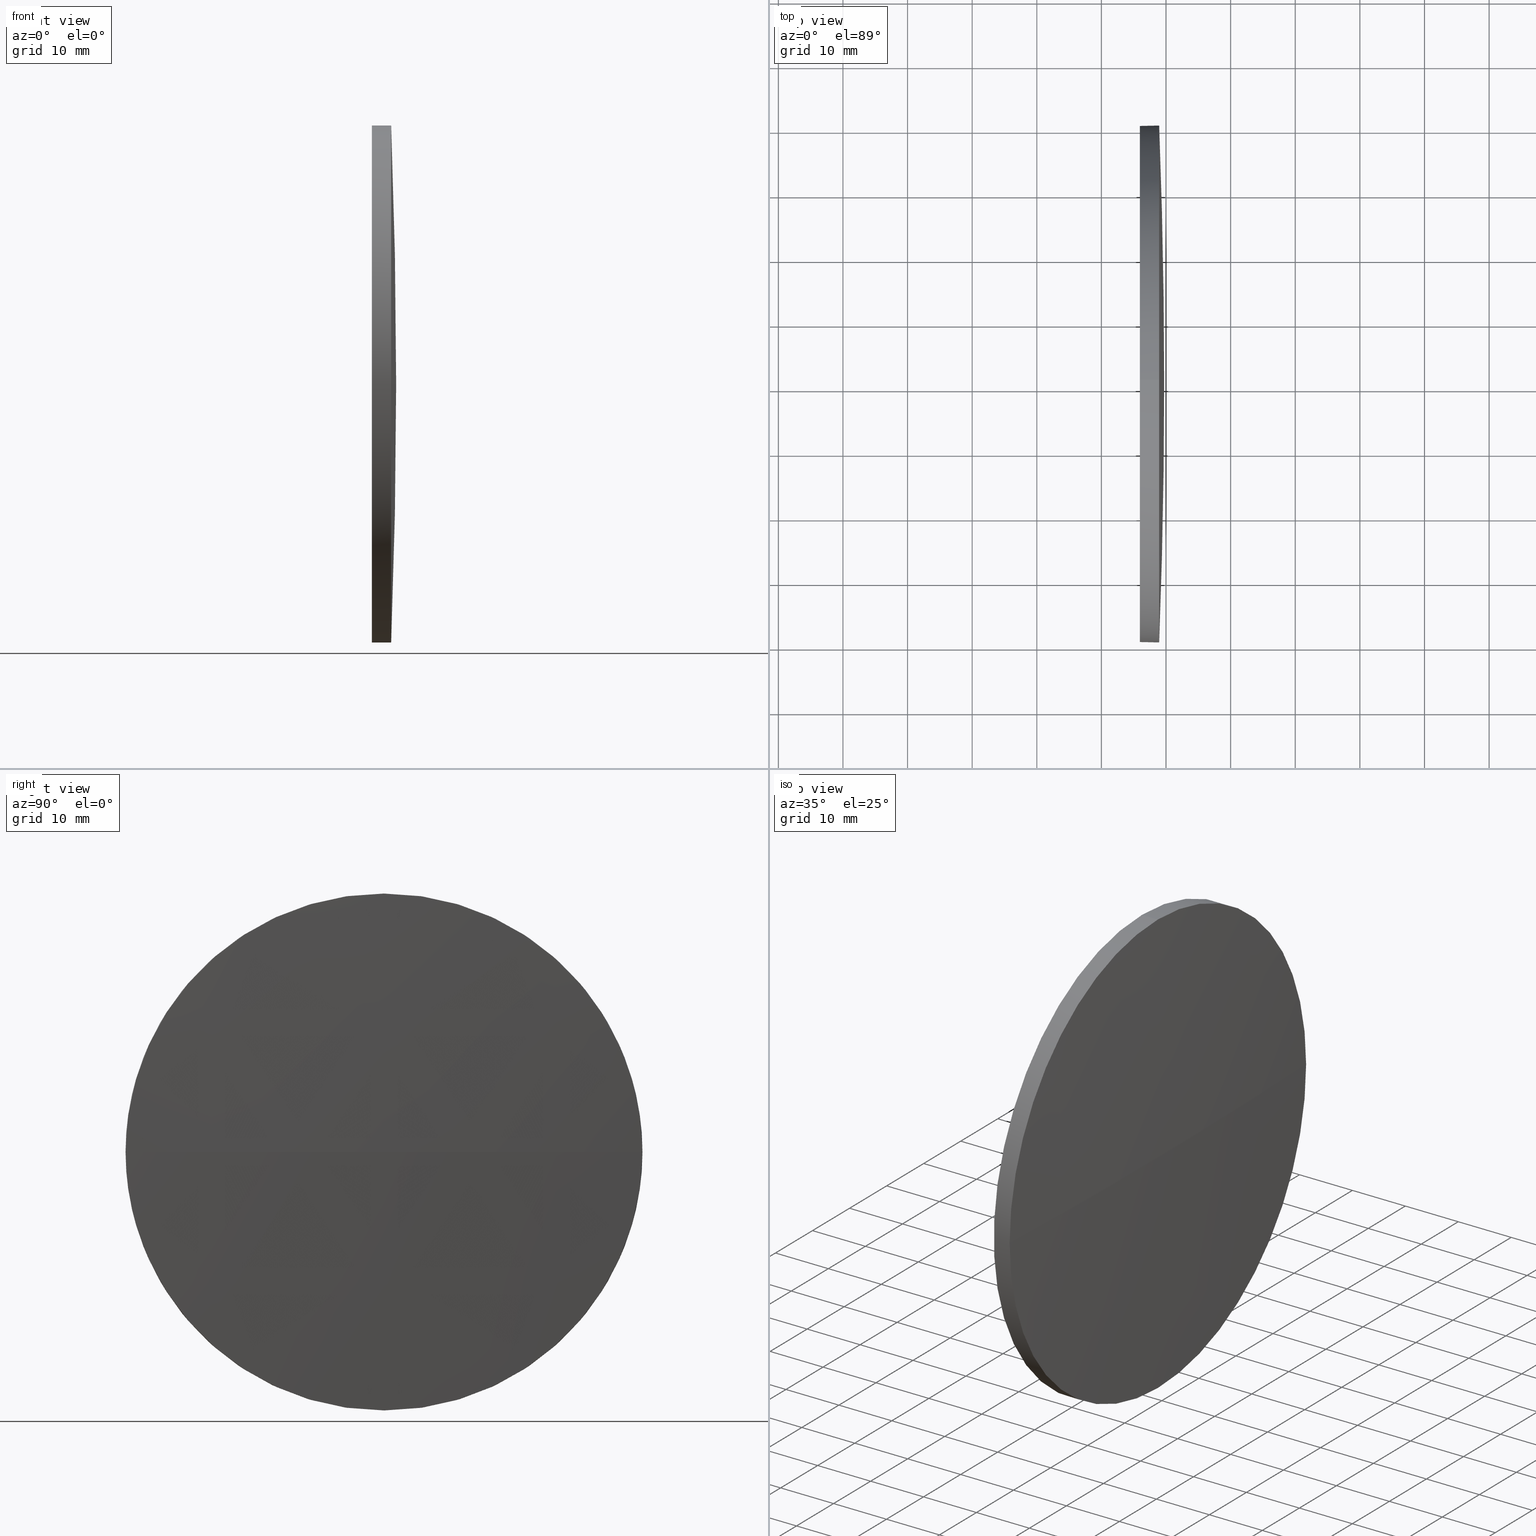
[diagram: canonical four-view strip — front | top / right | iso, engineering-drawing reading convention]
A machine part, canonical four-view strip (front | top / right | iso — engineering-drawing reading convention). The complete STEP part file that produces these views, byte-faithful:
ISO-10303-21;
HEADER;
FILE_DESCRIPTION (( 'STEP AP214' ),
    '1' );
FILE_NAME ('100168.STEP',
    '2019-05-17T03:44:50',
    ( '' ),
    ( '' ),
    'SwSTEP 2.0',
    'SolidWorks 2016',
    '' );
FILE_SCHEMA (( 'AUTOMOTIVE_DESIGN' ));
ENDSEC;

DATA;
#1 = SURFACE_STYLE_FILL_AREA ( #167 ) ;
#2 = ORIENTED_EDGE ( 'NONE', *, *, #165, .T. ) ;
#3 = MECHANICAL_DESIGN_GEOMETRIC_PRESENTATION_REPRESENTATION (  '', ( #46 ), #31 ) ;
#4 = EDGE_LOOP ( 'NONE', ( #44, #145 ) ) ;
#5 =( NAMED_UNIT ( * ) PLANE_ANGLE_UNIT ( ) SI_UNIT ( $, .RADIAN. ) );
#6 = DIRECTION ( 'NONE',  ( -1.000000000000000000, -0.0000000000000000000, -0.0000000000000000000 ) ) ;
#7 = DIRECTION ( 'NONE',  ( -1.000000000000000000, -0.0000000000000000000, -0.0000000000000000000 ) ) ;
#8 = ADVANCED_FACE ( 'NONE', ( #135 ), #43, .T. ) ;
#9 = FILL_AREA_STYLE_COLOUR ( '', #56 ) ;
#10 = EDGE_CURVE ( 'NONE', #170, #90, #91, .T. ) ;
#11 = ORIENTED_EDGE ( 'NONE', *, *, #40, .T. ) ;
#12 = CARTESIAN_POINT ( 'NONE',  ( 217.9945825323866300, 130.4671098528244200, 40.00000000000000700 ) ) ;
#13 = DIRECTION ( 'NONE',  ( -1.000000000000000000, -0.0000000000000000000, -0.0000000000000000000 ) ) ;
#14 = AXIS2_PLACEMENT_3D ( 'NONE', #174, #7, #139 ) ;
#15 =( NAMED_UNIT ( * ) PLANE_ANGLE_UNIT ( ) SI_UNIT ( $, .RADIAN. ) );
#16 = EDGE_LOOP ( 'NONE', ( #156, #84, #71, #150 ) ) ;
#17 =( GEOMETRIC_REPRESENTATION_CONTEXT ( 3 ) GLOBAL_UNCERTAINTY_ASSIGNED_CONTEXT ( ( #58 ) ) GLOBAL_UNIT_ASSIGNED_CONTEXT ( ( #55, #166, #87 ) ) REPRESENTATION_CONTEXT ( 'NONE', 'WORKASPACE' ) );
#18 = ORIENTED_EDGE ( 'NONE', *, *, #184, .T. ) ;
#19 = EDGE_CURVE ( 'NONE', #186, #78, #96, .T. ) ;
#20 = FACE_OUTER_BOUND ( 'NONE', #76, .T. ) ;
#21 = AXIS2_PLACEMENT_3D ( 'NONE', #125, #124, #26 ) ;
#22 =( NAMED_UNIT ( * ) SI_UNIT ( $, .STERADIAN. ) SOLID_ANGLE_UNIT ( ) );
#23 = PRODUCT_DEFINITION_SHAPE ( 'NONE', 'NONE',  #133 ) ;
#24 = CARTESIAN_POINT ( 'NONE',  ( 228.9390942240209200, 170.4671098528231400, 0.0000000000000000000 ) ) ;
#25 = PRESENTATION_LAYER_ASSIGNMENT (  '', '', ( #46 ) ) ;
#26 = DIRECTION ( 'NONE',  ( 0.0000000000000000000, 0.0000000000000000000, -1.000000000000000000 ) ) ;
#27 = SURFACE_STYLE_FILL_AREA ( #36 ) ;
#28 = CARTESIAN_POINT ( 'NONE',  ( -809.6369447370427700, 130.4671098528240500, 0.0000000000000000000 ) ) ;
#29 = PRODUCT_RELATED_PRODUCT_CATEGORY ( 'part', '', ( #127 ) ) ;
#30 = ORIENTED_EDGE ( 'NONE', *, *, #116, .T. ) ;
#31 =( GEOMETRIC_REPRESENTATION_CONTEXT ( 3 ) GLOBAL_UNCERTAINTY_ASSIGNED_CONTEXT ( ( #94 ) ) GLOBAL_UNIT_ASSIGNED_CONTEXT ( ( #97, #5, #22 ) ) REPRESENTATION_CONTEXT ( 'NONE', 'WORKASPACE' ) );
#32 = AXIS2_PLACEMENT_3D ( 'NONE', #180, #51, #175 ) ;
#33 = VERTEX_POINT ( 'NONE', #24 ) ;
#34 = CIRCLE ( 'NONE', #60, 40.00000000000000700 ) ;
#35 = ADVANCED_FACE ( 'NONE', ( #45 ), #81, .F. ) ;
#36 = FILL_AREA_STYLE ('',( #77 ) ) ;
#37 = MANIFOLD_SOLID_BREP ( '��ת1', #119 ) ;
#38 = CARTESIAN_POINT ( 'NONE',  ( 228.9390942240209200, 130.4671098528244200, 0.0000000000000000000 ) ) ;
#39 = CARTESIAN_POINT ( 'NONE',  ( 225.9490942240209100, 130.4671098528244200, -40.00000000000000700 ) ) ;
#40 = EDGE_CURVE ( 'NONE', #170, #78, #134, .T. ) ;
#41 = ORIENTED_EDGE ( 'NONE', *, *, #40, .F. ) ;
#42 = AXIS2_PLACEMENT_3D ( 'NONE', #98, #6, #48 ) ;
#43 = CYLINDRICAL_SURFACE ( 'NONE', #42, 40.00000000000000700 ) ;
#44 = ORIENTED_EDGE ( 'NONE', *, *, #19, .T. ) ;
#45 = FACE_OUTER_BOUND ( 'NONE', #4, .T. ) ;
#46 = STYLED_ITEM ( 'NONE', ( #142 ), #37 ) ;
#47 = DIRECTION ( 'NONE',  ( -1.000000000000000000, -0.0000000000000000000, -0.0000000000000000000 ) ) ;
#48 = DIRECTION ( 'NONE',  ( 0.0000000000000000000, 0.0000000000000000000, 1.000000000000000000 ) ) ;
#49 = AXIS2_PLACEMENT_3D ( 'NONE', #112, #128, #57 ) ;
#50 = CARTESIAN_POINT ( 'NONE',  ( 225.9490942240209100, 130.4671098528244200, 0.0000000000000000000 ) ) ;
#51 = DIRECTION ( 'NONE',  ( -0.0000000000000000000, 0.0000000000000000000, -1.000000000000000000 ) ) ;
#52 = DIRECTION ( 'NONE',  ( 0.0000000000000000000, 0.0000000000000000000, 1.000000000000000000 ) ) ;
#53 = EDGE_CURVE ( 'NONE', #178, #33, #154, .T. ) ;
#54 = CARTESIAN_POINT ( 'NONE',  ( 228.9390942240209200, 130.4671098528244200, 0.0000000000000000000 ) ) ;
#55 =( LENGTH_UNIT ( ) NAMED_UNIT ( * ) SI_UNIT ( .MILLI., .METRE. ) );
#56 = COLOUR_RGB ( '',1.000000000000000000, 1.000000000000000000, 1.000000000000000000 ) ;
#57 = DIRECTION ( 'NONE',  ( 0.0000000000000000000, 0.0000000000000000000, 1.000000000000000000 ) ) ;
#58 = UNCERTAINTY_MEASURE_WITH_UNIT (LENGTH_MEASURE( 1.000000000000000100E-005 ), #55, 'distance_accuracy_value', 'NONE');
#59 = ORIENTED_EDGE ( 'NONE', *, *, #53, .T. ) ;
#60 = AXIS2_PLACEMENT_3D ( 'NONE', #50, #164, #52 ) ;
#61 = APPLICATION_CONTEXT ( 'automotive_design' ) ;
#62 = SHAPE_DEFINITION_REPRESENTATION ( #23, #182 ) ;
#63 = ORIENTED_EDGE ( 'NONE', *, *, #10, .T. ) ;
#64 = CIRCLE ( 'NONE', #49, 40.00000000000000700 ) ;
#65 = SPHERICAL_SURFACE ( 'NONE', #32, 1039.346038961063600 ) ;
#66 = CARTESIAN_POINT ( 'NONE',  ( -809.6369447370427700, 130.4671098528240500, 0.0000000000000000000 ) ) ;
#67 = ORIENTED_EDGE ( 'NONE', *, *, #19, .F. ) ;
#68 = DIRECTION ( 'NONE',  ( -0.0000000000000000000, 0.0000000000000000000, -1.000000000000000000 ) ) ;
#69 = CARTESIAN_POINT ( 'NONE',  ( 225.9490942240209100, 130.4671098528244200, 40.00000000000000700 ) ) ;
#70 = DIRECTION ( 'NONE',  ( 0.0000000000000000000, 1.000000000000000000, 1.224646799147353200E-016 ) ) ;
#71 = ORIENTED_EDGE ( 'NONE', *, *, #53, .F. ) ;
#72 = DIRECTION ( 'NONE',  ( 1.000000000000000000, 0.0000000000000000000, 0.0000000000000000000 ) ) ;
#73 = PRODUCT_CONTEXT ( 'NONE', #61, 'mechanical' ) ;
#74 = ORIENTED_EDGE ( 'NONE', *, *, #93, .F. ) ;
#75 = STYLED_ITEM ( 'NONE', ( #121 ), #182 ) ;
#76 = EDGE_LOOP ( 'NONE', ( #41, #63, #136, #30, #74 ) ) ;
#77 = FILL_AREA_STYLE_COLOUR ( '', #179 ) ;
#78 = VERTEX_POINT ( 'NONE', #39 ) ;
#79 = LINE ( 'NONE', #12, #146 ) ;
#80 = AXIS2_PLACEMENT_3D ( 'NONE', #99, #172, #149 ) ;
#81 = PLANE ( 'NONE',  #21 ) ;
#82 = DIRECTION ( 'NONE',  ( 0.0000000000000000000, 0.0000000000000000000, 1.000000000000000000 ) ) ;
#83 = CARTESIAN_POINT ( 'NONE',  ( 229.7090942240208700, 130.4671098528241100, 0.0000000000000000000 ) ) ;
#84 = ORIENTED_EDGE ( 'NONE', *, *, #143, .T. ) ;
#85 = CARTESIAN_POINT ( 'NONE',  ( 228.9390942240209200, 130.4671098528244200, -40.00000000000000700 ) ) ;
#86 = APPLICATION_CONTEXT ( 'automotive_design' ) ;
#87 =( NAMED_UNIT ( * ) SI_UNIT ( $, .STERADIAN. ) SOLID_ANGLE_UNIT ( ) );
#88 = AXIS2_PLACEMENT_3D ( 'NONE', #38, #131, #160 ) ;
#89 = APPLICATION_PROTOCOL_DEFINITION ( 'draft international standard', 'automotive_design', 1998, #61 ) ;
#90 = VERTEX_POINT ( 'NONE', #162 ) ;
#91 = CIRCLE ( 'NONE', #80, 40.00000000000000700 ) ;
#92 = PRODUCT_DEFINITION_FORMATION_WITH_SPECIFIED_SOURCE ( '�κ�', '', #127, .NOT_KNOWN. ) ;
#93 = EDGE_CURVE ( 'NONE', #78, #186, #34, .T. ) ;
#94 = UNCERTAINTY_MEASURE_WITH_UNIT (LENGTH_MEASURE( 1.000000000000000100E-005 ), #97, 'distance_accuracy_value', 'NONE');
#95 = AXIS2_PLACEMENT_3D ( 'NONE', #28, #101, #152 ) ;
#96 = CIRCLE ( 'NONE', #14, 40.00000000000000700 ) ;
#97 =( LENGTH_UNIT ( ) NAMED_UNIT ( * ) SI_UNIT ( .MILLI., .METRE. ) );
#98 = CARTESIAN_POINT ( 'NONE',  ( 217.9945825323866300, 130.4671098528244200, 0.0000000000000000000 ) ) ;
#99 = CARTESIAN_POINT ( 'NONE',  ( 228.9390942240209200, 130.4671098528244200, 0.0000000000000000000 ) ) ;
#100 = VERTEX_POINT ( 'NONE', #83 ) ;
#101 = DIRECTION ( 'NONE',  ( -0.0000000000000000000, 0.0000000000000000000, 1.000000000000000000 ) ) ;
#102 = EDGE_CURVE ( 'NONE', #90, #178, #110, .T. ) ;
#103 = CARTESIAN_POINT ( 'NONE',  ( 217.9945825323866300, 130.4671098528244200, 0.0000000000000000000 ) ) ;
#104 = ORIENTED_EDGE ( 'NONE', *, *, #116, .F. ) ;
#105 = CIRCLE ( 'NONE', #151, 1039.346038961063600 ) ;
#106 = DIRECTION ( 'NONE',  ( 0.0000000000000000000, 0.0000000000000000000, 1.000000000000000000 ) ) ;
#107 =( NAMED_UNIT ( * ) SI_UNIT ( $, .STERADIAN. ) SOLID_ANGLE_UNIT ( ) );
#108 = MECHANICAL_DESIGN_GEOMETRIC_PRESENTATION_REPRESENTATION (  '', ( #75 ), #17 ) ;
#109 = AXIS2_PLACEMENT_3D ( 'NONE', #113, #68, #117 ) ;
#110 = CIRCLE ( 'NONE', #111, 40.00000000000000700 ) ;
#111 = AXIS2_PLACEMENT_3D ( 'NONE', #54, #140, #82 ) ;
#112 = CARTESIAN_POINT ( 'NONE',  ( 228.9390942240209200, 130.4671098528244200, 0.0000000000000000000 ) ) ;
#113 = CARTESIAN_POINT ( 'NONE',  ( -809.6369447370427700, 130.4671098528240500, 0.0000000000000000000 ) ) ;
#114 = EDGE_LOOP ( 'NONE', ( #18, #11, #67, #104, #59 ) ) ;
#115 = DIRECTION ( 'NONE',  ( 0.0000000000000000000, 0.0000000000000000000, 1.000000000000000000 ) ) ;
#116 = EDGE_CURVE ( 'NONE', #178, #186, #79, .T. ) ;
#117 = DIRECTION ( 'NONE',  ( 0.0000000000000000000, 1.000000000000000000, 0.0000000000000000000 ) ) ;
#118 = ADVANCED_FACE ( 'NONE', ( #122 ), #141, .T. ) ;
#119 = CLOSED_SHELL ( 'NONE', ( #8, #118, #130, #132, #35 ) ) ;
#120 = AXIS2_PLACEMENT_3D ( 'NONE', #103, #13, #115 ) ;
#121 = PRESENTATION_STYLE_ASSIGNMENT (( #169 ) ) ;
#122 = FACE_OUTER_BOUND ( 'NONE', #173, .T. ) ;
#123 = AXIS2_PLACEMENT_3D ( 'NONE', #153, #106, #72 ) ;
#124 = DIRECTION ( 'NONE',  ( 1.000000000000000000, 0.0000000000000000000, 0.0000000000000000000 ) ) ;
#125 = CARTESIAN_POINT ( 'NONE',  ( 225.9490942240209100, 130.4671098528244200, 0.0000000000000000000 ) ) ;
#126 = CARTESIAN_POINT ( 'NONE',  ( 217.9945825323866300, 130.4671098528244200, -40.00000000000000700 ) ) ;
#127 = PRODUCT ( '100168', '100168', '', ( #73 ) ) ;
#128 = DIRECTION ( 'NONE',  ( -1.000000000000000000, -0.0000000000000000000, -0.0000000000000000000 ) ) ;
#129 = DIRECTION ( 'NONE',  ( 0.0000000000000000000, 1.224646799147353200E-016, -1.000000000000000000 ) ) ;
#130 = ADVANCED_FACE ( 'NONE', ( #137 ), #65, .T. ) ;
#131 = DIRECTION ( 'NONE',  ( -1.000000000000000000, -0.0000000000000000000, -0.0000000000000000000 ) ) ;
#132 = ADVANCED_FACE ( 'NONE', ( #20 ), #158, .T. ) ;
#133 = PRODUCT_DEFINITION ( 'δ֪', '', #92, #147 ) ;
#134 = LINE ( 'NONE', #126, #148 ) ;
#135 = FACE_OUTER_BOUND ( 'NONE', #114, .T. ) ;
#136 = ORIENTED_EDGE ( 'NONE', *, *, #102, .T. ) ;
#137 = FACE_OUTER_BOUND ( 'NONE', #16, .T. ) ;
#138 = SURFACE_SIDE_STYLE ('',( #27 ) ) ;
#139 = DIRECTION ( 'NONE',  ( 0.0000000000000000000, 0.0000000000000000000, 1.000000000000000000 ) ) ;
#140 = DIRECTION ( 'NONE',  ( -1.000000000000000000, -0.0000000000000000000, -0.0000000000000000000 ) ) ;
#141 = SPHERICAL_SURFACE ( 'NONE', #109, 1039.346038961063600 ) ;
#142 = PRESENTATION_STYLE_ASSIGNMENT (( #159 ) ) ;
#143 = EDGE_CURVE ( 'NONE', #100, #33, #171, .T. ) ;
#144 = SURFACE_SIDE_STYLE ('',( #1 ) ) ;
#145 = ORIENTED_EDGE ( 'NONE', *, *, #93, .T. ) ;
#146 = VECTOR ( 'NONE', #161, 1000.000000000000000 ) ;
#147 = PRODUCT_DEFINITION_CONTEXT ( 'detailed design', #86, 'design' ) ;
#148 = VECTOR ( 'NONE', #47, 1000.000000000000000 ) ;
#149 = DIRECTION ( 'NONE',  ( 0.0000000000000000000, 0.0000000000000000000, 1.000000000000000000 ) ) ;
#150 = ORIENTED_EDGE ( 'NONE', *, *, #102, .F. ) ;
#151 = AXIS2_PLACEMENT_3D ( 'NONE', #66, #129, #70 ) ;
#152 = DIRECTION ( 'NONE',  ( 1.000000000000000000, 0.0000000000000000000, 0.0000000000000000000 ) ) ;
#153 = CARTESIAN_POINT ( 'NONE',  ( 0.0000000000000000000, 0.0000000000000000000, 0.0000000000000000000 ) ) ;
#154 = CIRCLE ( 'NONE', #88, 40.00000000000000700 ) ;
#155 = UNCERTAINTY_MEASURE_WITH_UNIT (LENGTH_MEASURE( 1.000000000000000100E-005 ), #176, 'distance_accuracy_value', 'NONE');
#156 = ORIENTED_EDGE ( 'NONE', *, *, #165, .F. ) ;
#157 = ORIENTED_EDGE ( 'NONE', *, *, #143, .F. ) ;
#158 = CYLINDRICAL_SURFACE ( 'NONE', #120, 40.00000000000000700 ) ;
#159 = SURFACE_STYLE_USAGE ( .BOTH. , #138 ) ;
#160 = DIRECTION ( 'NONE',  ( 0.0000000000000000000, 0.0000000000000000000, 1.000000000000000000 ) ) ;
#161 = DIRECTION ( 'NONE',  ( -1.000000000000000000, -0.0000000000000000000, -0.0000000000000000000 ) ) ;
#162 = CARTESIAN_POINT ( 'NONE',  ( 228.9390942240209200, 90.46710985282534500, -4.898587196589255300E-015 ) ) ;
#163 = ORIENTED_EDGE ( 'NONE', *, *, #184, .F. ) ;
#164 = DIRECTION ( 'NONE',  ( -1.000000000000000000, -0.0000000000000000000, -0.0000000000000000000 ) ) ;
#165 = EDGE_CURVE ( 'NONE', #100, #90, #105, .T. ) ;
#166 =( NAMED_UNIT ( * ) PLANE_ANGLE_UNIT ( ) SI_UNIT ( $, .RADIAN. ) );
#167 = FILL_AREA_STYLE ('',( #9 ) ) ;
#168 = PRESENTATION_LAYER_ASSIGNMENT (  '', '', ( #75 ) ) ;
#169 = SURFACE_STYLE_USAGE ( .BOTH. , #144 ) ;
#170 = VERTEX_POINT ( 'NONE', #85 ) ;
#171 = CIRCLE ( 'NONE', #95, 1039.346038961063600 ) ;
#172 = DIRECTION ( 'NONE',  ( -1.000000000000000000, -0.0000000000000000000, -0.0000000000000000000 ) ) ;
#173 = EDGE_LOOP ( 'NONE', ( #157, #2, #185, #163 ) ) ;
#174 = CARTESIAN_POINT ( 'NONE',  ( 225.9490942240209100, 130.4671098528244200, 0.0000000000000000000 ) ) ;
#175 = DIRECTION ( 'NONE',  ( 0.0000000000000000000, 1.000000000000000000, 0.0000000000000000000 ) ) ;
#176 =( LENGTH_UNIT ( ) NAMED_UNIT ( * ) SI_UNIT ( .MILLI., .METRE. ) );
#177 =( GEOMETRIC_REPRESENTATION_CONTEXT ( 3 ) GLOBAL_UNCERTAINTY_ASSIGNED_CONTEXT ( ( #155 ) ) GLOBAL_UNIT_ASSIGNED_CONTEXT ( ( #176, #15, #107 ) ) REPRESENTATION_CONTEXT ( 'NONE', 'WORKASPACE' ) );
#178 = VERTEX_POINT ( 'NONE', #181 ) ;
#179 = COLOUR_RGB ( '',1.000000000000000000, 1.000000000000000000, 1.000000000000000000 ) ;
#180 = CARTESIAN_POINT ( 'NONE',  ( -809.6369447370427700, 130.4671098528240500, 0.0000000000000000000 ) ) ;
#181 = CARTESIAN_POINT ( 'NONE',  ( 228.9390942240209200, 130.4671098528244200, 40.00000000000000700 ) ) ;
#182 = ADVANCED_BREP_SHAPE_REPRESENTATION ( '100168', ( #37, #123 ), #177 ) ;
#183 = APPLICATION_PROTOCOL_DEFINITION ( 'draft international standard', 'automotive_design', 1998, #86 ) ;
#184 = EDGE_CURVE ( 'NONE', #33, #170, #64, .T. ) ;
#185 = ORIENTED_EDGE ( 'NONE', *, *, #10, .F. ) ;
#186 = VERTEX_POINT ( 'NONE', #69 ) ;
ENDSEC;
END-ISO-10303-21;
